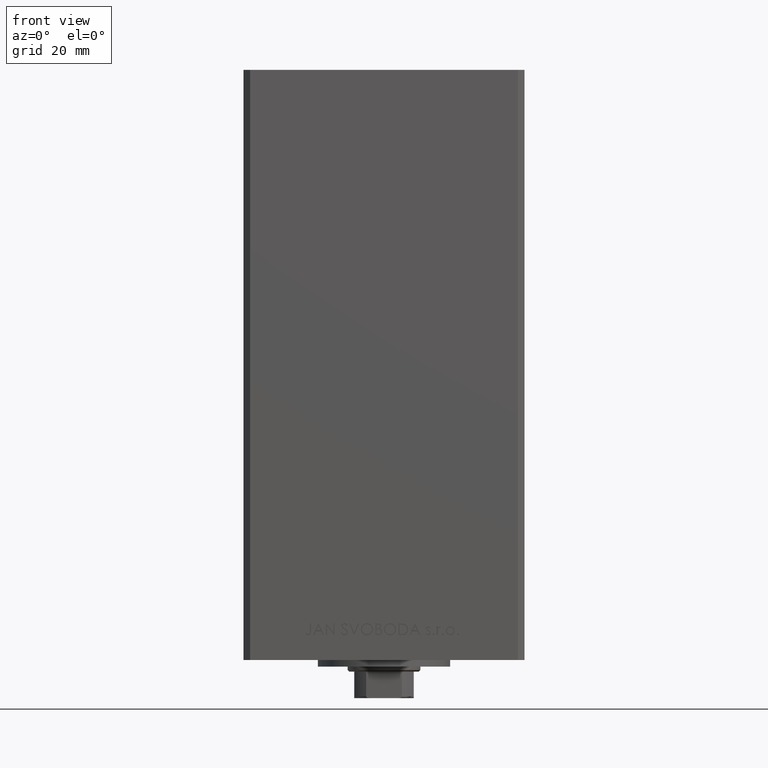
[diagram: clean part render]
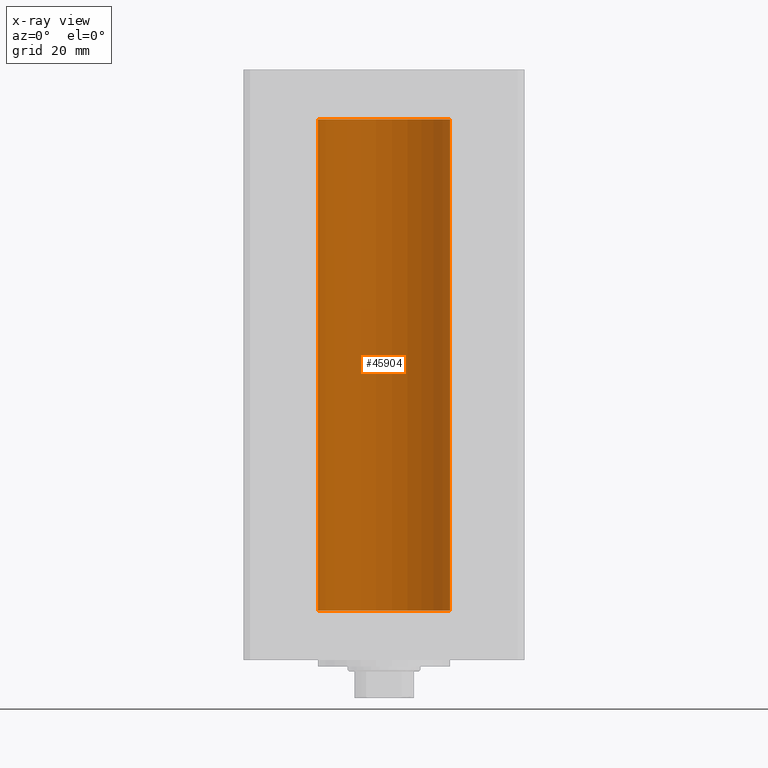
[diagram: x-ray — body ghosted, one internal face saturated and labeled with its STEP entity id]
A machine part, front view, then the same camera in x-ray: the body is ghosted and one INTERNAL B-rep face — a face not visible from any outside direction — is saturated and labeled: STEP entity #45904.
In plain terms, the highlighted cylindrical surface (partial cylindrical patch) has radius 20 mm, axis along (-0, -0, -1).
Its self-contained STEP definition (entity closure, byte-faithful):
#396 = EDGE_CURVE ( 'NONE', #39544, #2940, #36881, .T. ) ;
#2940 = VERTEX_POINT ( 'NONE', #6230 ) ;
#3060 = ORIENTED_EDGE ( 'NONE', *, *, #4475, .F. ) ;
#3184 = DIRECTION ( 'NONE',  ( -0.000000000000000000, -0.000000000000000000, -1.000000000000000000 ) ) ;
#4475 = EDGE_CURVE ( 'NONE', #11996, #2940, #7908, .T. ) ;
#4714 = VECTOR ( 'NONE', #36628, 1000.000000000000000 ) ;
#6230 = CARTESIAN_POINT ( 'NONE',  ( -20.00000000000000000, 0.000000000000000000, 0.000000000000000000 ) ) ;
#6292 = CARTESIAN_POINT ( 'NONE',  ( 20.00000000000000000, 2.449293598294706513E-15, 148.5000000000000000 ) ) ;
#7794 = CARTESIAN_POINT ( 'NONE',  ( 0.000000000000000000, 0.000000000000000000, 148.5000000000000000 ) ) ;
#7908 = CIRCLE ( 'NONE', #11878, 20.00000000000000000 ) ;
#8265 = ORIENTED_EDGE ( 'NONE', *, *, #11162, .T. ) ;
#9612 = ORIENTED_EDGE ( 'NONE', *, *, #15877, .F. ) ;
#10057 = CARTESIAN_POINT ( 'NONE',  ( 0.000000000000000000, 0.000000000000000000, 148.5000000000000000 ) ) ;
#11080 = CARTESIAN_POINT ( 'NONE',  ( 0.000000000000000000, 0.000000000000000000, 0.000000000000000000 ) ) ;
#11162 = EDGE_CURVE ( 'NONE', #15044, #39544, #12863, .T. ) ;
#11878 = AXIS2_PLACEMENT_3D ( 'NONE', #11080, #37745, #18315 ) ;
#11996 = VERTEX_POINT ( 'NONE', #27155 ) ;
#12863 = CIRCLE ( 'NONE', #15294, 20.00000000000000000 ) ;
#13533 = FACE_OUTER_BOUND ( 'NONE', #32531, .T. ) ;
#15044 = VERTEX_POINT ( 'NONE', #6292 ) ;
#15294 = AXIS2_PLACEMENT_3D ( 'NONE', #7794, #22253, #30216 ) ;
#15877 = EDGE_CURVE ( 'NONE', #15044, #11996, #25849, .T. ) ;
#18271 = CYLINDRICAL_SURFACE ( 'NONE', #27418, 20.00000000000000000 ) ;
#18315 = DIRECTION ( 'NONE',  ( 1.000000000000000000, 0.000000000000000000, 0.000000000000000000 ) ) ;
#22253 = DIRECTION ( 'NONE',  ( -0.000000000000000000, 0.000000000000000000, 1.000000000000000000 ) ) ;
#23522 = ORIENTED_EDGE ( 'NONE', *, *, #396, .T. ) ;
#25849 = LINE ( 'NONE', #33566, #39281 ) ;
#27155 = CARTESIAN_POINT ( 'NONE',  ( 20.00000000000000000, 2.449293598294706513E-15, 0.000000000000000000 ) ) ;
#27418 = AXIS2_PLACEMENT_3D ( 'NONE', #10057, #44671, #29007 ) ;
#29007 = DIRECTION ( 'NONE',  ( -1.000000000000000000, 0.000000000000000000, 0.000000000000000000 ) ) ;
#30216 = DIRECTION ( 'NONE',  ( 1.000000000000000000, 0.000000000000000000, 0.000000000000000000 ) ) ;
#32531 = EDGE_LOOP ( 'NONE', ( #9612, #8265, #23522, #3060 ) ) ;
#33143 = CARTESIAN_POINT ( 'NONE',  ( -20.00000000000000000, 0.000000000000000000, 148.5000000000000000 ) ) ;
#33566 = CARTESIAN_POINT ( 'NONE',  ( 20.00000000000000000, 2.449293598294706513E-15, 148.5000000000000000 ) ) ;
#36628 = DIRECTION ( 'NONE',  ( -0.000000000000000000, -0.000000000000000000, -1.000000000000000000 ) ) ;
#36881 = LINE ( 'NONE', #33143, #4714 ) ;
#37745 = DIRECTION ( 'NONE',  ( -0.000000000000000000, 0.000000000000000000, 1.000000000000000000 ) ) ;
#39281 = VECTOR ( 'NONE', #3184, 1000.000000000000000 ) ;
#39544 = VERTEX_POINT ( 'NONE', #41729 ) ;
#41729 = CARTESIAN_POINT ( 'NONE',  ( -20.00000000000000000, 0.000000000000000000, 148.5000000000000000 ) ) ;
#44671 = DIRECTION ( 'NONE',  ( -0.000000000000000000, -0.000000000000000000, -1.000000000000000000 ) ) ;
#45904 = ADVANCED_FACE ( 'NONE', ( #13533 ), #18271, .F. ) ;